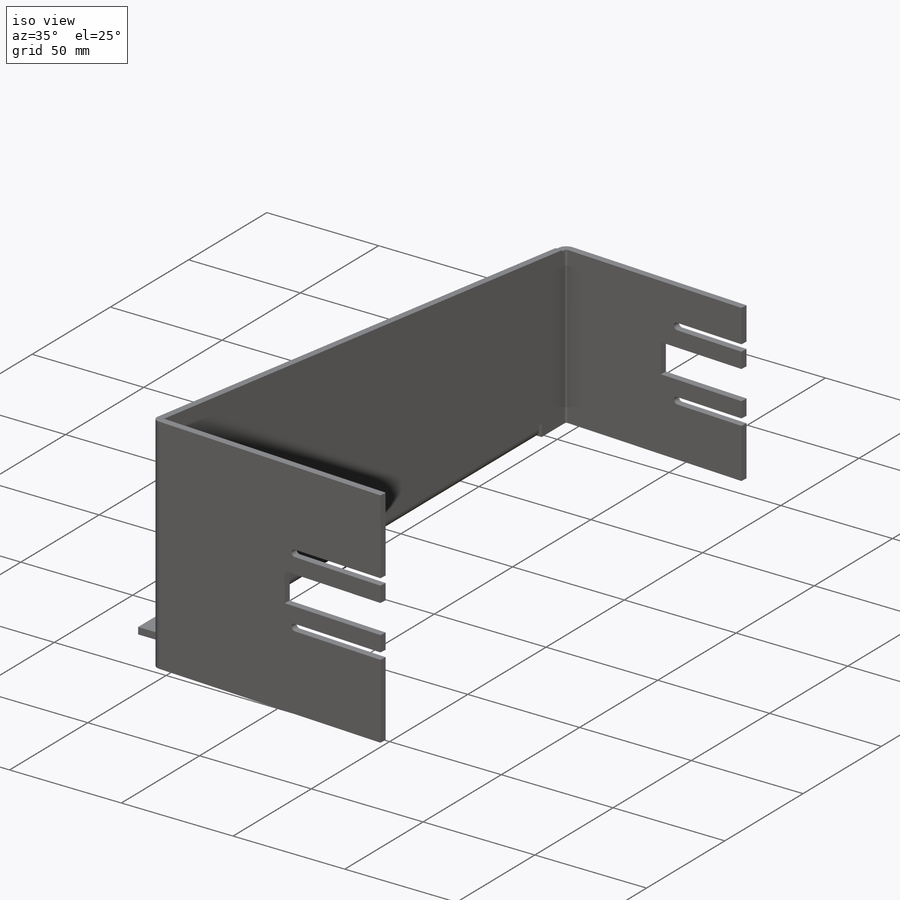
[diagram: iso view]
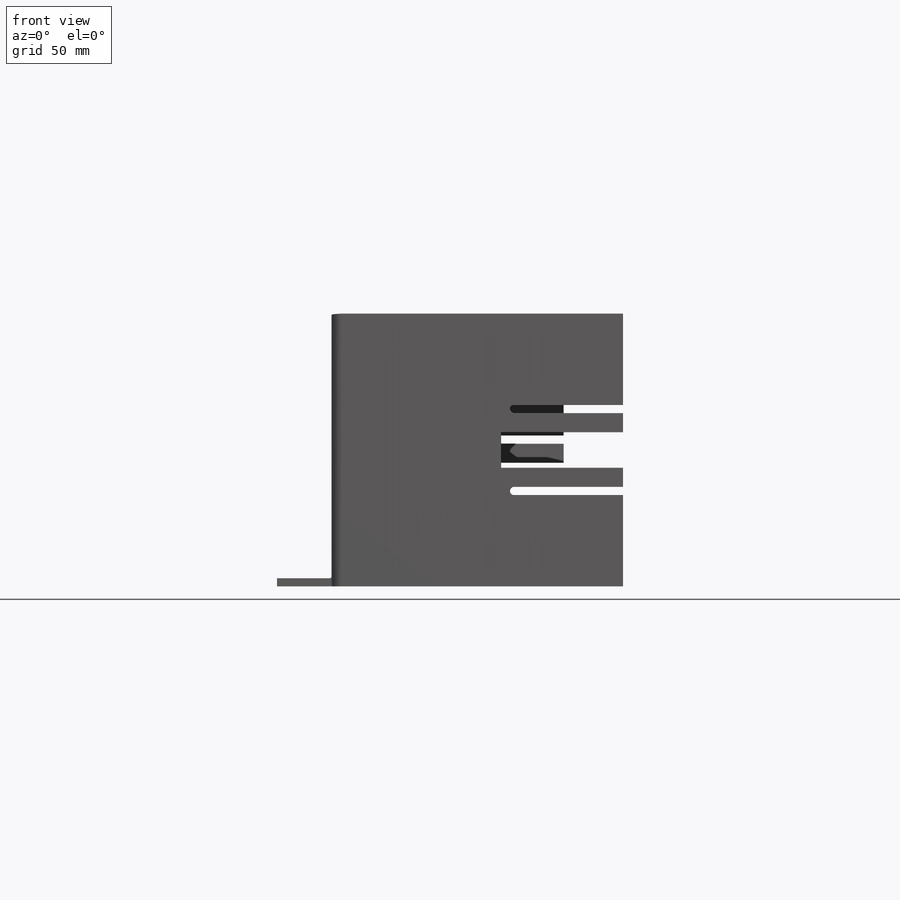
[diagram: front view]
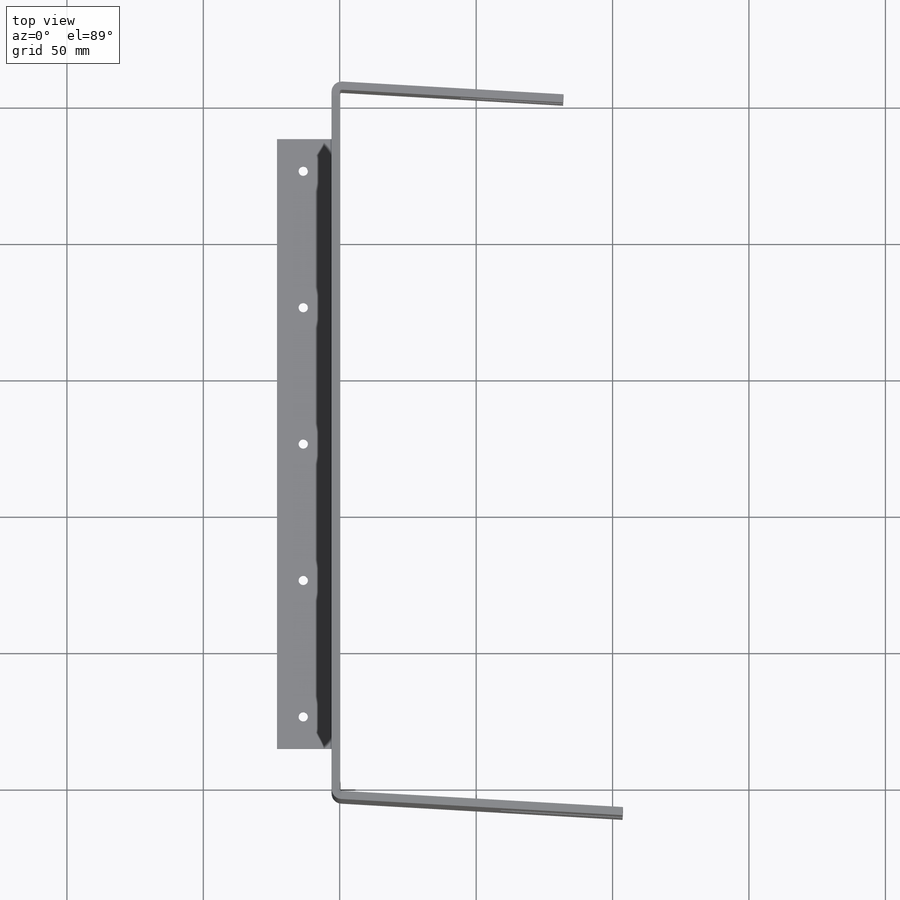
[diagram: top view]
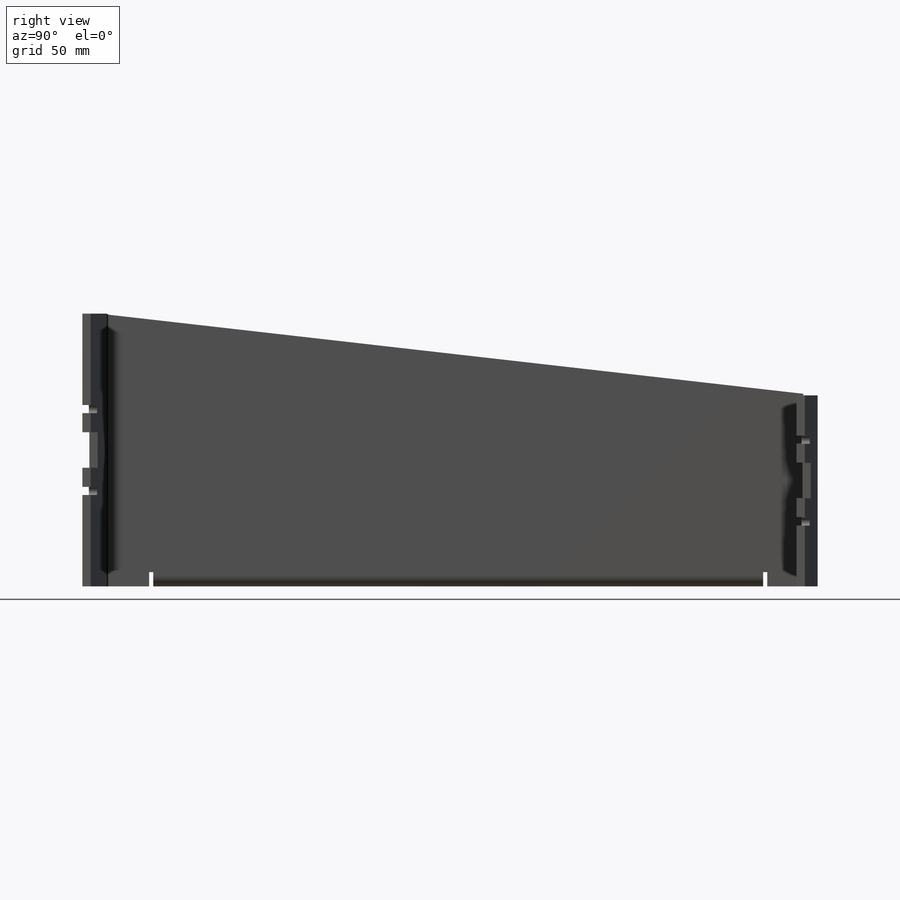
[diagram: right view]
SOLIDWORKS PART (.sldprt)
format: sldprt  version: not decoded by parser v0  size: 356,352 bytes
history: native  units: mm
features: sketch x10, sheet_metal_op x4, cut_extrude x2, material x1, hole x1 + 3 further entries (+11 scaffold rows collapsed; 1 parser-record rows omitted)
feature tree (33):
  scaffold x11  (default folders/planes/origin — collapsed)
  material  "6061 Alloy"
  sketch  "Sketch1"  dims[D1=265.24mm D2=100.0mm D3=70.0mm]
  sheet_metal_op  "Sheet-Metal1"
  sheet_metal_op  "Base-Flange1"
  sketch  "Sketch6"  dims[c1.D1=20.0mm c1.D2=20.0mm c2.D1=0.7366mm c2.D4=90.0deg c2.D5=1.0 c2.D8=1.5mm c2.D9=1.5mm c3.D1=0.7366mm c3.D2=500.0mm c3.D3=0.0mm c3.D6=10.0mm c3.D7=20.0mm c3.Big End Mount=0.0]
  sketch  "Sketch9"  dims[D1=104.0mm]
  sheet_metal_op  "EdgeBend2"  Small End Mount=0
  sketch  "Sketch12"
  sheet_metal_op  "EdgeBend3"
  hole  "M3 Clearance Hole1"  Diameter=3.4mm Depth=10mm
  sketch  "Sketch14"  dims[D1=50.0mm D2=100.0mm D3=50.0mm D4=100.0mm]
  sketch  "Sketch13"  dims[hole-wizard template sketch: 50 standard entries collapsed; hole parameters above]
  sketch  "Sketch15"  dims[D1=1.5mm D2=1.5mm D3=15.0mm D4=15.0mm D5=13.0mm D6=59.3mm D7=40.0mm D8=50.0mm]
  cut_extrude  "Big End Mouting Slots"  [1 undecoded]
  sketch  "Sketch16"  dims[D1=1.5mm D2=1.5mm D3=15.0mm D4=15.0mm D5=13.0mm D6=30.0mm D7=44.3mm D8=~38.794092mm]
  cut_extrude  "Cut-Extrude2"  [1 undecoded]
  "Flat-Pattern1"
  sketch  "Bend-Lines1"
  sketch  "Bounding-Box1"
  parser-record x1  (decoder bookkeeping rows leaked as tree rows — omitted from the tree; the rows remain in map.json)
  "Flatten-<EdgeBend2>1"
  "Flatten-<EdgeBend3>1"
decode coverage: 9 of 17 modeling features carry decoded parameters; 3 rows unclassified (native names shown)
note: ~ marks probable driven/reference dimensions
note: 2 parameter values undecoded
note: suppression state not decoded; provenance and decode notes live in map.json
